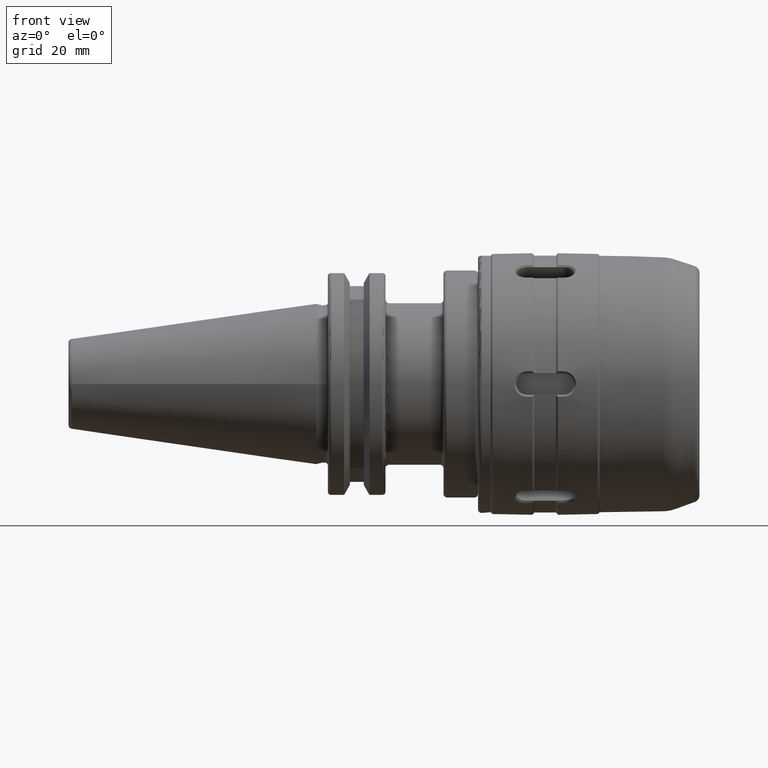
[diagram: clean part render]
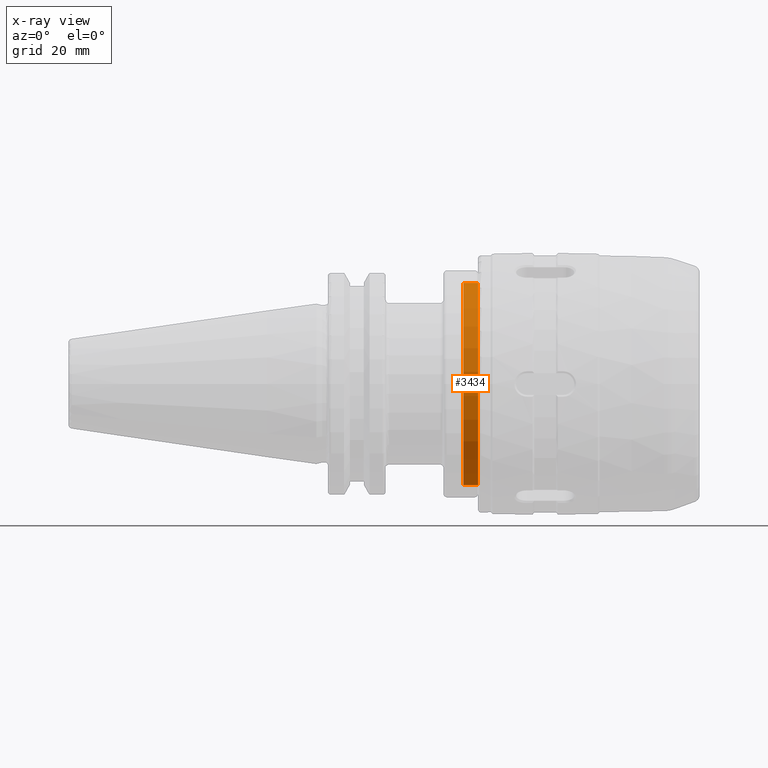
[diagram: x-ray — body ghosted, one internal face saturated and labeled with its STEP entity id]
A machine part, front view, then the same camera in x-ray: the body is ghosted and one INTERNAL B-rep face — a face not visible from any outside direction — is saturated and labeled: STEP entity #3434.
In plain terms, the highlighted cylindrical surface (bore or boss wall) has radius 27.8 mm, axis along (-1, 0, 0).
Its self-contained STEP definition (entity closure, byte-faithful):
#152=CYLINDRICAL_SURFACE('',#3765,27.8);
#327=FACE_OUTER_BOUND('',#531,.T.);
#531=EDGE_LOOP('',(#2452,#2453,#2454,#2455,#2456,#2457));
#722=LINE('',#5290,#963);
#963=VECTOR('',#4277,27.8);
#1205=CIRCLE('',#3694,27.8);
#1206=CIRCLE('',#3695,27.8);
#1252=CIRCLE('',#3763,27.8);
#1253=CIRCLE('',#3764,27.8);
#1415=VERTEX_POINT('',#5149);
#1416=VERTEX_POINT('',#5150);
#1460=VERTEX_POINT('',#5285);
#1461=VERTEX_POINT('',#5286);
#1785=EDGE_CURVE('',#1415,#1416,#1205,.T.);
#1786=EDGE_CURVE('',#1416,#1415,#1206,.T.);
#1844=EDGE_CURVE('',#1460,#1461,#1252,.T.);
#1845=EDGE_CURVE('',#1461,#1460,#1253,.T.);
#1846=EDGE_CURVE('',#1461,#1416,#722,.T.);
#2452=ORIENTED_EDGE('',*,*,#1844,.T.);
#2453=ORIENTED_EDGE('',*,*,#1846,.T.);
#2454=ORIENTED_EDGE('',*,*,#1785,.F.);
#2455=ORIENTED_EDGE('',*,*,#1786,.F.);
#2456=ORIENTED_EDGE('',*,*,#1846,.F.);
#2457=ORIENTED_EDGE('',*,*,#1845,.T.);
#3434=ADVANCED_FACE('',(#327),#152,.F.);
#3694=AXIS2_PLACEMENT_3D('',#5151,#4123,#4124);
#3695=AXIS2_PLACEMENT_3D('',#5152,#4125,#4126);
#3763=AXIS2_PLACEMENT_3D('',#5287,#4271,#4272);
#3764=AXIS2_PLACEMENT_3D('',#5288,#4273,#4274);
#3765=AXIS2_PLACEMENT_3D('',#5289,#4275,#4276);
#4123=DIRECTION('center_axis',(-1.,0.,0.));
#4124=DIRECTION('ref_axis',(0.,0.,1.));
#4125=DIRECTION('center_axis',(-1.,0.,0.));
#4126=DIRECTION('ref_axis',(0.,0.,1.));
#4271=DIRECTION('center_axis',(-1.,0.,0.));
#4272=DIRECTION('ref_axis',(0.,0.,1.));
#4273=DIRECTION('center_axis',(-1.,0.,0.));
#4274=DIRECTION('ref_axis',(0.,0.,1.));
#4275=DIRECTION('center_axis',(-1.,0.,0.));
#4276=DIRECTION('ref_axis',(0.,0.,1.));
#4277=DIRECTION('',(1.,0.,0.));
#5149=CARTESIAN_POINT('',(44.5,0.,27.8));
#5150=CARTESIAN_POINT('',(44.5,-3.40451810162964E-15,-27.8));
#5151=CARTESIAN_POINT('Origin',(44.5,0.,0.));
#5152=CARTESIAN_POINT('Origin',(44.5,0.,0.));
#5285=CARTESIAN_POINT('',(40.5,0.,27.8));
#5286=CARTESIAN_POINT('',(40.5,-3.40451810162964E-15,-27.8));
#5287=CARTESIAN_POINT('Origin',(40.5,0.,0.));
#5288=CARTESIAN_POINT('Origin',(40.5,0.,0.));
#5289=CARTESIAN_POINT('Origin',(42.5,0.,0.));
#5290=CARTESIAN_POINT('',(42.5,-3.40451810162964E-15,-27.8));